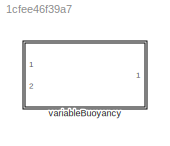
MODEL slx_1cfee46f39a7
KIND library
CONFIG AbsTol = auto
CONFIG EnableMultiTasking = off
CONFIG FixedStep = auto
CONFIG MaxStep = auto
CONFIG MinStep = auto
CONFIG RelTol = 1e-3
CONFIG SampleTimeConstraint = Unconstrained
CONFIG SolverName = VariableStepAuto
CONFIG StartTime = 0.0
CONFIG StopTime = 10.0
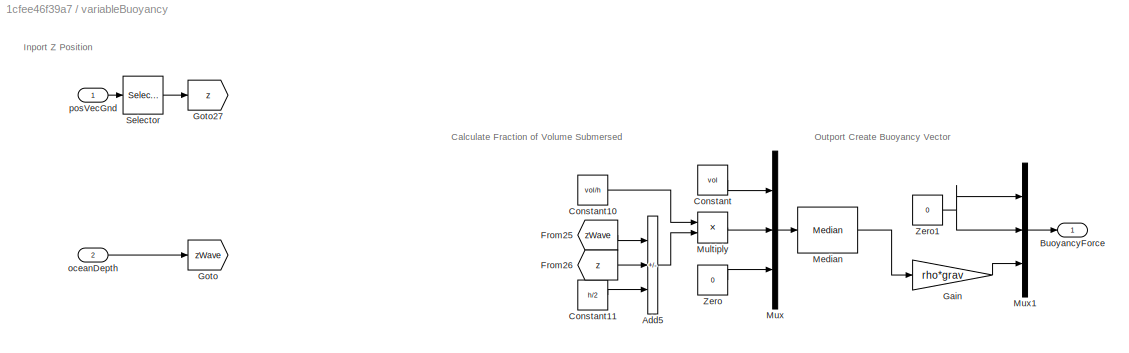
BLOCK [SubSystem] variableBuoyancy
  Ports = [2, 1]
  RequestExecContextInheritance = off
BLOCK [Sum] variableBuoyancy/Add5
  IconShape = rectangular
  Inputs = +-+
  Ports = [3, 1]
BLOCK [Outport] variableBuoyancy/BuoyancyForce
  VectorParamsAs1DForOutWhenUnconnected = off
BLOCK [Constant] variableBuoyancy/Constant
  Value = vol
BLOCK [Constant] variableBuoyancy/Constant10
  Value = vol/h
BLOCK [Constant] variableBuoyancy/Constant11
  Value = h/2
BLOCK [From] variableBuoyancy/From25
  GotoTag = zWave
BLOCK [From] variableBuoyancy/From26
  GotoTag = z
BLOCK [Gain] variableBuoyancy/Gain
  Gain = rho*grav
BLOCK [Goto] variableBuoyancy/Goto
  GotoTag = zWave
BLOCK [Goto] variableBuoyancy/Goto27
  GotoTag = z
BLOCK [Reference] variableBuoyancy/Median  REF=dspstat3/Median
  Ports = [1, 1]
  SourceBlock = dspstat3/Median
  SourceProductBaseCode = DS
  SourceType = Median
BLOCK [Product] variableBuoyancy/Multiply
  Ports = [2, 1]
BLOCK [Mux] variableBuoyancy/Mux
  DisplayOption = bar
  Inputs = 3
  Ports = [3, 1]
BLOCK [Mux] variableBuoyancy/Mux1
  DisplayOption = bar
  Inputs = 3
  Ports = [3, 1]
BLOCK [Selector] variableBuoyancy/Selector
  IndexOptions = Index vector (dialog)
  Indices = 3
  InputPortWidth = 3
  OutputSizes = 1
  Ports = [1, 1]
BLOCK [Constant] variableBuoyancy/Zero
  OutDataTypeStr = Inherit: Inherit via back propagation
  Value = 0
BLOCK [Constant] variableBuoyancy/Zero1
  OutDataTypeStr = Inherit: Inherit via back propagation
  Value = 0
BLOCK [Inport] variableBuoyancy/oceanDepth
  Port = 2
BLOCK [Inport] variableBuoyancy/posVecGnd
ANNOTATION variableBuoyancy: Calculate Fraction of Volume Submersed
ANNOTATION variableBuoyancy: Inport Z Position
ANNOTATION variableBuoyancy: Outport Create Buoyancy Vector
LINE variableBuoyancy/Add5:1 -> variableBuoyancy/Multiply:2
LINE variableBuoyancy/Constant10:1 -> variableBuoyancy/Multiply:1
LINE variableBuoyancy/Constant11:1 -> variableBuoyancy/Add5:3
LINE variableBuoyancy/Constant:1 -> variableBuoyancy/Mux:1
LINE variableBuoyancy/From25:1 -> variableBuoyancy/Add5:1
LINE variableBuoyancy/From26:1 -> variableBuoyancy/Add5:2
LINE variableBuoyancy/Gain:1 -> variableBuoyancy/Mux1:3
LINE variableBuoyancy/Median:1 -> variableBuoyancy/Gain:1
LINE variableBuoyancy/Multiply:1 -> variableBuoyancy/Mux:2
LINE variableBuoyancy/Mux1:1 -> variableBuoyancy/BuoyancyForce:1
LINE variableBuoyancy/Mux:1 -> variableBuoyancy/Median:1
LINE variableBuoyancy/Selector:1 -> variableBuoyancy/Goto27:1
NET variableBuoyancy/Zero1:1 -> variableBuoyancy/Mux1:1, variableBuoyancy/Mux1:2
LINE variableBuoyancy/Zero:1 -> variableBuoyancy/Mux:3
LINE variableBuoyancy/oceanDepth:1 -> variableBuoyancy/Goto:1
LINE variableBuoyancy/posVecGnd:1 -> variableBuoyancy/Selector:1
note: NET lines group one-source signal fan-out (src -> all destinations, sorted); 1:1 wires keep LINE
